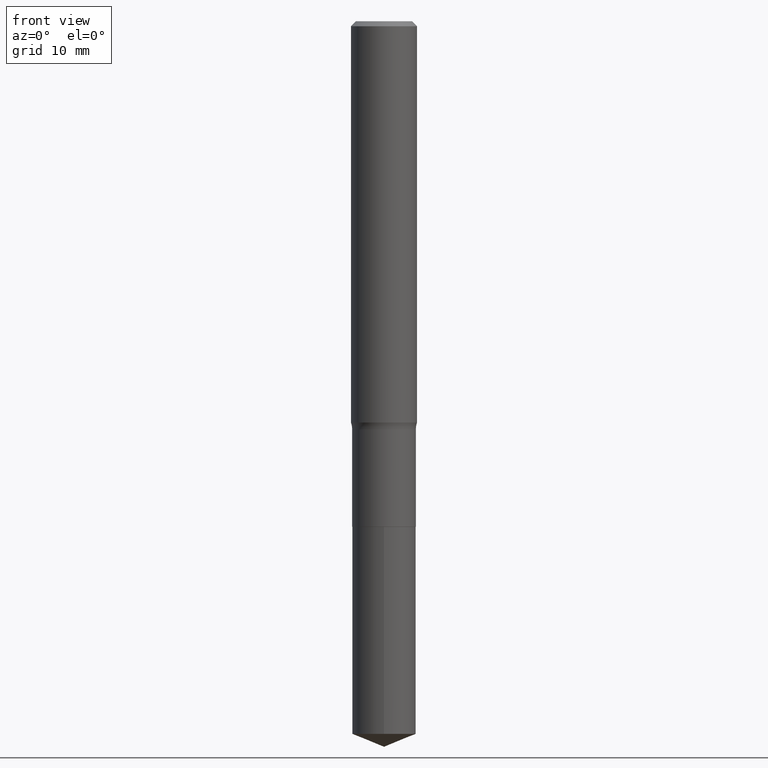
[diagram: clean part render]
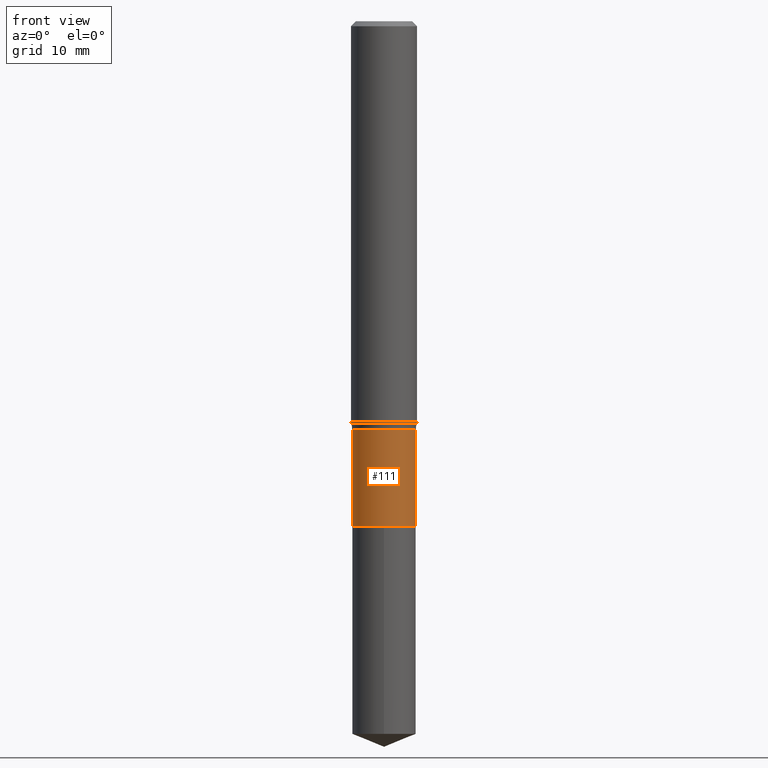
[diagram: same view with one face highlighted and labeled with its STEP entity id]
A machine part, front view. The second image highlights one B-rep face of the part: STEP entity #111.
In plain terms, the highlighted cylindrical surface (edge-blend (fillet) strip) has radius 2.8994 mm, axis along (-0, 0, 1).
Its self-contained STEP definition (entity closure, byte-faithful):
#20 = DIRECTION ( 'NONE',  ( -2.445468806185136877E-29, 3.491481338843145188E-15, 1.000000000000000000 ) ) ;
#46 = ORIENTED_EDGE ( 'NONE', *, *, #75, .F. ) ;
#51 = ORIENTED_EDGE ( 'NONE', *, *, #367, .T. ) ;
#54 = AXIS2_PLACEMENT_3D ( 'NONE', #211, #113, #175 ) ;
#62 = CARTESIAN_POINT ( 'NONE',  ( 0.1141499999999999598, -7.971051896578870271E-16, 5.566155789571058785E-30 ) ) ;
#67 = AXIS2_PLACEMENT_3D ( 'NONE', #126, #426, #120 ) ;
#75 = EDGE_CURVE ( 'NONE', #91, #199, #288, .T. ) ;
#79 = VECTOR ( 'NONE', #20, 39.37007874015748143 ) ;
#91 = VERTEX_POINT ( 'NONE', #219 ) ;
#93 = CIRCLE ( 'NONE', #216, 0.1141500000000000015 ) ;
#111 = ADVANCED_FACE ( 'NONE', ( #448 ), #476, .T. ) ;
#113 = DIRECTION ( 'NONE',  ( -2.445468806185136597E-29, 3.491481338843145583E-15, 1.000000000000000000 ) ) ;
#117 = DIRECTION ( 'NONE',  ( 1.000000000000000000, -6.982962677686264344E-15, 0.000000000000000000 ) ) ;
#120 = DIRECTION ( 'NONE',  ( 1.000000000000000000, -6.982962677686268288E-15, 0.000000000000000000 ) ) ;
#126 = CARTESIAN_POINT ( 'NONE',  ( 3.574786300881431790E-29, -5.103847421120908993E-15, -1.461799999999999766 ) ) ;
#127 = CARTESIAN_POINT ( 'NONE',  ( 0.1141499999999999460, -5.900952610778795922E-15, -1.461799999999999766 ) ) ;
#147 = CARTESIAN_POINT ( 'NONE',  ( -0.1141499999999999598, 8.110845328701540768E-16, -5.614964405525973270E-30 ) ) ;
#174 = VECTOR ( 'NONE', #376, 39.37007874015748143 ) ;
#175 = DIRECTION ( 'NONE',  ( 1.000000000000000000, -6.982962677686266711E-15, 4.876176775795935793E-29 ) ) ;
#176 = DIRECTION ( 'NONE',  ( -2.445468806185136597E-29, 3.491481338843145583E-15, 1.000000000000000000 ) ) ;
#199 = VERTEX_POINT ( 'NONE', #218 ) ;
#200 = EDGE_CURVE ( 'NONE', #91, #292, #93, .T. ) ;
#211 = CARTESIAN_POINT ( 'NONE',  ( 0.000000000000000000, 0.000000000000000000, 0.000000000000000000 ) ) ;
#216 = AXIS2_PLACEMENT_3D ( 'NONE', #259, #176, #117 ) ;
#218 = CARTESIAN_POINT ( 'NONE',  ( -0.1141499999999999460, -4.901502659678057961E-15, -1.461799999999999766 ) ) ;
#219 = CARTESIAN_POINT ( 'NONE',  ( -0.1141499999999999737, -4.901502659678057961E-15, -1.810499999999999998 ) ) ;
#230 = CIRCLE ( 'NONE', #67, 0.1141499999999999460 ) ;
#259 = CARTESIAN_POINT ( 'NONE',  ( 4.427521273598189436E-29, -6.321326963975514491E-15, -1.810499999999999998 ) ) ;
#288 = LINE ( 'NONE', #147, #174 ) ;
#292 = VERTEX_POINT ( 'NONE', #428 ) ;
#348 = EDGE_CURVE ( 'NONE', #199, #389, #230, .T. ) ;
#367 = EDGE_CURVE ( 'NONE', #292, #389, #468, .T. ) ;
#376 = DIRECTION ( 'NONE',  ( -2.445468806185136877E-29, 3.491481338843145188E-15, 1.000000000000000000 ) ) ;
#389 = VERTEX_POINT ( 'NONE', #127 ) ;
#417 = ORIENTED_EDGE ( 'NONE', *, *, #348, .F. ) ;
#426 = DIRECTION ( 'NONE',  ( -2.445468806185136597E-29, 3.491481338843145583E-15, 1.000000000000000000 ) ) ;
#428 = CARTESIAN_POINT ( 'NONE',  ( 0.1141500000000000015, -7.118432153633402209E-15, -1.810499999999999998 ) ) ;
#441 = EDGE_LOOP ( 'NONE', ( #46, #470, #51, #417 ) ) ;
#448 = FACE_OUTER_BOUND ( 'NONE', #441, .T. ) ;
#468 = LINE ( 'NONE', #62, #79 ) ;
#470 = ORIENTED_EDGE ( 'NONE', *, *, #200, .T. ) ;
#476 = CYLINDRICAL_SURFACE ( 'NONE', #54, 0.1141499999999999598 ) ;